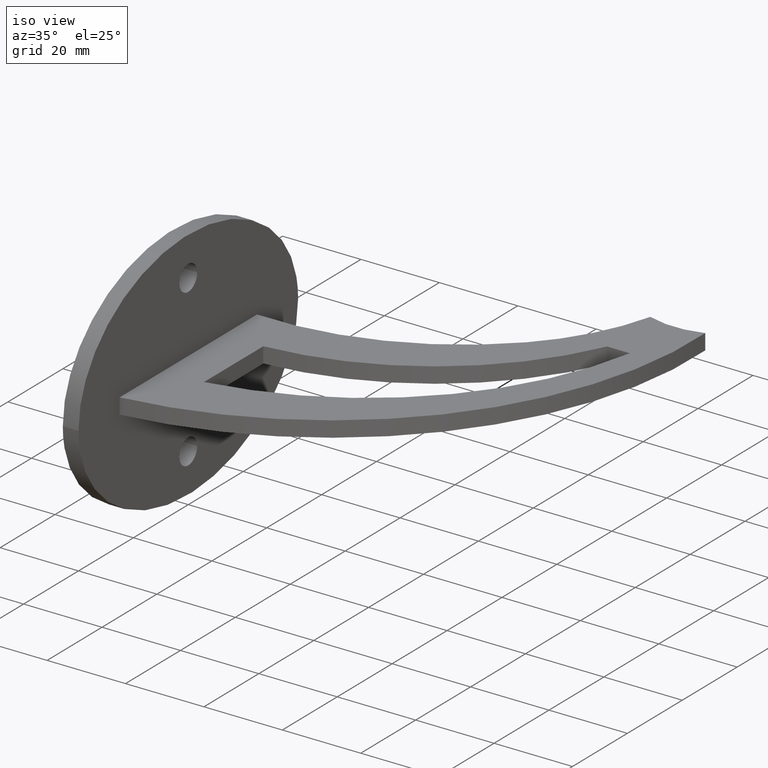
[diagram: clean part render]
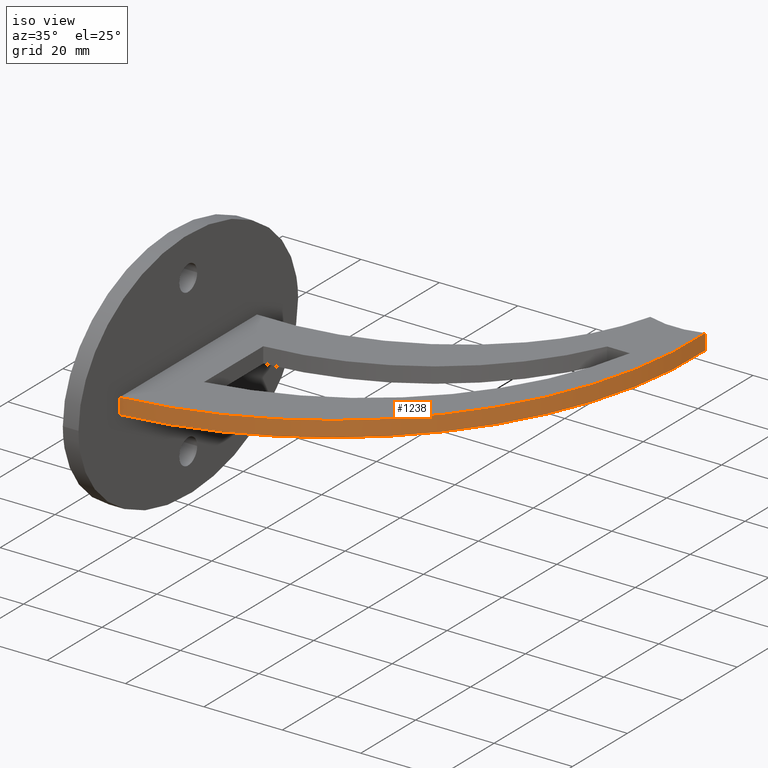
[diagram: same view with one face highlighted and labeled with its STEP entity id]
A machine part, iso view. The second image highlights one B-rep face of the part: STEP entity #1238.
In plain terms, the highlighted cylindrical surface (partial cylindrical patch) has radius 92 mm, axis along (-0, -0, -1).
Its self-contained STEP definition (entity closure, byte-faithful):
#142 = DIRECTION ( 'NONE',  ( 1.000000000000000000, 0.000000000000000000, 0.000000000000000000 ) ) ;
#387 = LINE ( 'NONE', #5033, #10511 ) ;
#867 = DIRECTION ( 'NONE',  ( -0.000000000000000000, -0.000000000000000000, -1.000000000000000000 ) ) ;
#1238 = ADVANCED_FACE ( 'NONE', ( #3745 ), #9493, .T. ) ;
#1312 = VERTEX_POINT ( 'NONE', #2443 ) ;
#1908 = EDGE_CURVE ( 'NONE', #9426, #5801, #387, .T. ) ;
#1909 = VECTOR ( 'NONE', #6815, 1000.000000000000000 ) ;
#2289 = AXIS2_PLACEMENT_3D ( 'NONE', #6547, #10153, #142 ) ;
#2443 = CARTESIAN_POINT ( 'NONE',  ( -1.998401444325186453E-12, -24.99999999999879918, -2.000000000000000000 ) ) ;
#2513 = CARTESIAN_POINT ( 'NONE',  ( 81.99999999999997158, 71.18900302333739205, -2.000000000000000000 ) ) ;
#3126 = CIRCLE ( 'NONE', #2289, 91.99999999999938893 ) ;
#3157 = AXIS2_PLACEMENT_3D ( 'NONE', #7677, #11322, #11598 ) ;
#3570 = DIRECTION ( 'NONE',  ( 1.000000000000000000, 0.000000000000000000, 0.000000000000000000 ) ) ;
#3745 = FACE_OUTER_BOUND ( 'NONE', #5641, .T. ) ;
#4294 = LINE ( 'NONE', #9518, #1909 ) ;
#4760 = ORIENTED_EDGE ( 'NONE', *, *, #1908, .F. ) ;
#5033 = CARTESIAN_POINT ( 'NONE',  ( 81.99999999999997158, 71.18900302333739205, 2.000000000000000000 ) ) ;
#5641 = EDGE_LOOP ( 'NONE', ( #11543, #4760, #10820, #5849 ) ) ;
#5801 = VERTEX_POINT ( 'NONE', #2513 ) ;
#5849 = ORIENTED_EDGE ( 'NONE', *, *, #8018, .T. ) ;
#6150 = DIRECTION ( 'NONE',  ( -0.000000000000000000, 0.000000000000000000, 1.000000000000000000 ) ) ;
#6455 = CARTESIAN_POINT ( 'NONE',  ( 81.99999999999997158, 71.18900302333739205, 2.000000000000000000 ) ) ;
#6547 = CARTESIAN_POINT ( 'NONE',  ( -9.878794471127335441, 66.46807869304582539, -2.000000000000000000 ) ) ;
#6815 = DIRECTION ( 'NONE',  ( -0.000000000000000000, -0.000000000000000000, -1.000000000000000000 ) ) ;
#7094 = CARTESIAN_POINT ( 'NONE',  ( -9.878794471127335441, 66.46807869304582539, 2.000000000000000000 ) ) ;
#7677 = CARTESIAN_POINT ( 'NONE',  ( -9.878794471127335441, 66.46807869304582539, 2.000000000000000000 ) ) ;
#8018 = EDGE_CURVE ( 'NONE', #8431, #1312, #4294, .T. ) ;
#8431 = VERTEX_POINT ( 'NONE', #11471 ) ;
#9300 = AXIS2_PLACEMENT_3D ( 'NONE', #7094, #6150, #3570 ) ;
#9426 = VERTEX_POINT ( 'NONE', #6455 ) ;
#9493 = CYLINDRICAL_SURFACE ( 'NONE', #3157, 91.99999999999941735 ) ;
#9518 = CARTESIAN_POINT ( 'NONE',  ( 2.220446049250313081E-13, -24.99999999999879918, 2.000000000000000000 ) ) ;
#10153 = DIRECTION ( 'NONE',  ( -0.000000000000000000, 0.000000000000000000, 1.000000000000000000 ) ) ;
#10483 = EDGE_CURVE ( 'NONE', #8431, #9426, #11610, .T. ) ;
#10511 = VECTOR ( 'NONE', #867, 1000.000000000000000 ) ;
#10820 = ORIENTED_EDGE ( 'NONE', *, *, #10483, .F. ) ;
#10965 = EDGE_CURVE ( 'NONE', #1312, #5801, #3126, .T. ) ;
#11322 = DIRECTION ( 'NONE',  ( -0.000000000000000000, -0.000000000000000000, -1.000000000000000000 ) ) ;
#11471 = CARTESIAN_POINT ( 'NONE',  ( -1.998139615876600116E-12, -24.99999999999961986, 2.000000000000000000 ) ) ;
#11543 = ORIENTED_EDGE ( 'NONE', *, *, #10965, .T. ) ;
#11598 = DIRECTION ( 'NONE',  ( -1.000000000000000000, 0.000000000000000000, 0.000000000000000000 ) ) ;
#11610 = CIRCLE ( 'NONE', #9300, 91.99999999999938893 ) ;